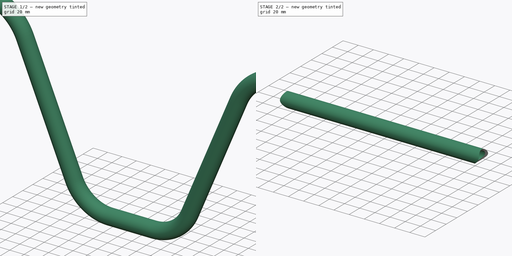
[diagram: build sequence overview — one tinted view per stage of 2, left to right]
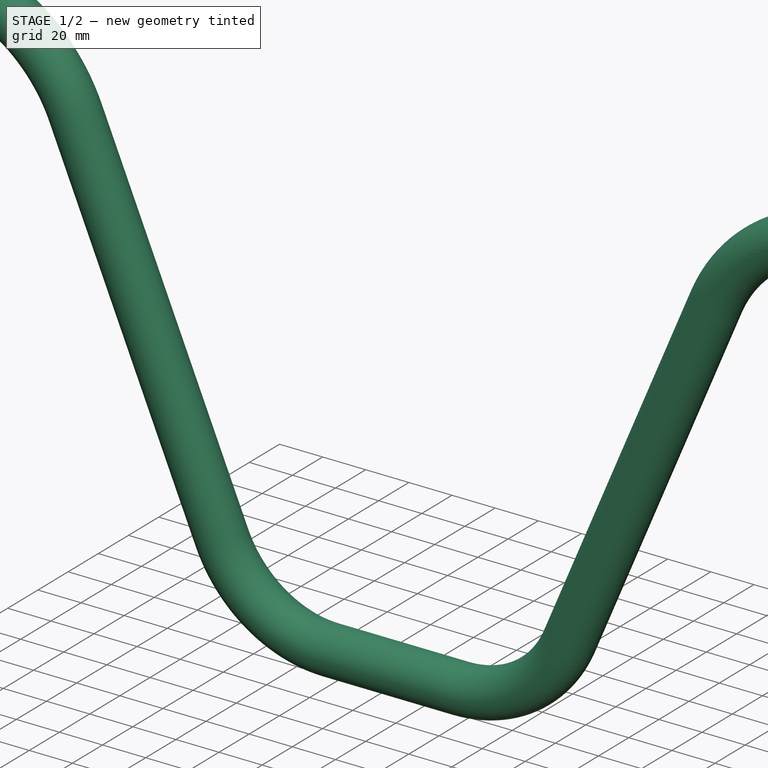
[diagram: stage 1 of 2 — iso view after this stage's code; geometry added in this stage tinted green]
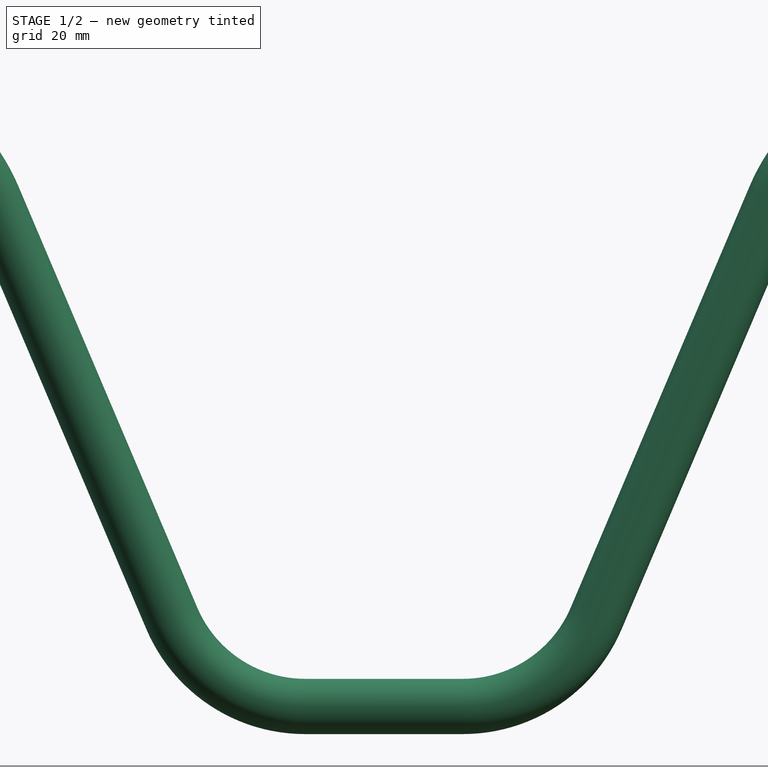
[diagram: stage 1 of 2 — front view after this stage's code; geometry added in this stage tinted green]
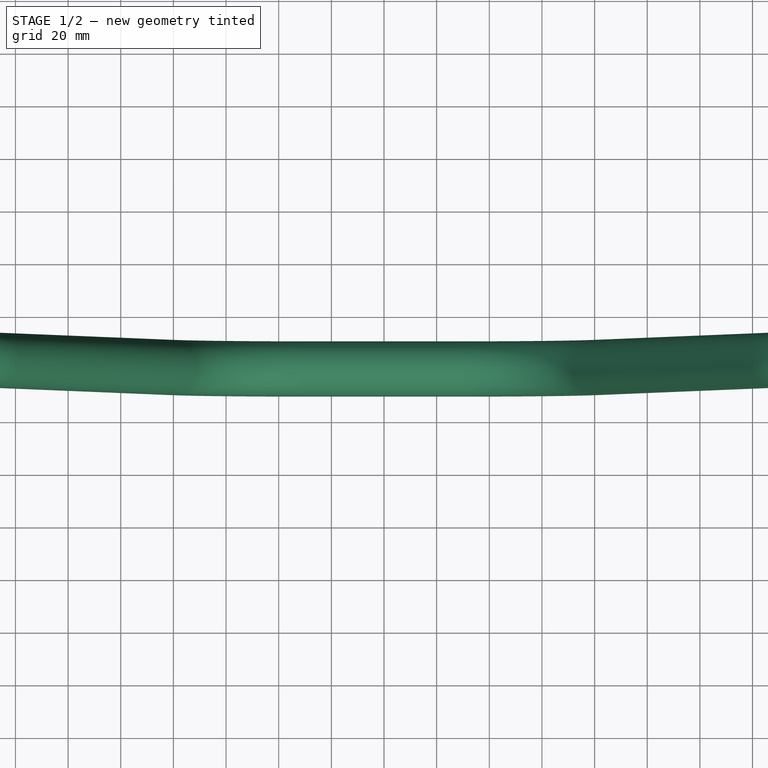
[diagram: stage 1 of 2 — top view after this stage's code; geometry added in this stage tinted green]
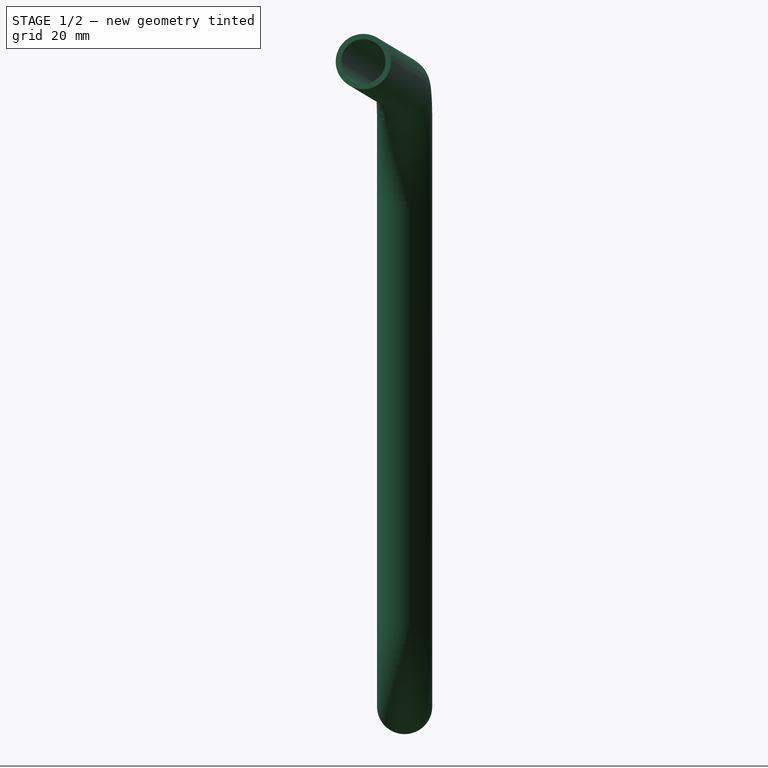
[diagram: stage 1 of 2 — right view after this stage's code; geometry added in this stage tinted green]
FCSTD DOCUMENT  (FreeCAD 1.0R39285 (Git))
Label: Bike_Handlebar
License: All rights reserved
LicenseURL: https://en.wikipedia.org/wiki/All_rights_reserved
objects: Sketcher::SketchObject×4, PartDesign::SubShapeBinder×3, PartDesign::Body×2, PartDesign::Pad×2, Part::FeaturePython×1, App::DocumentObjectGroup×1, PartDesign::AdditivePipe×1, PartDesign::Mirrored×1, App::Part×1
note: 25 computed .brp shape members not serialized (recipe doc carries the construction recipe); baked Part::Feature solids carry a one-line shape summary decoded from their .brp

FEATURE [Sketcher::SketchObject] Sketch  label="Front"
  ArcFitTolerance = 1e-06
  FullyConstrained = true
  MakeInternals = false
  Placement = pos=(0,0,0) rot=(1,0,0;1.5708rad)
  sketch-geometry (5):
    g0: LineSegment StartX=0 StartY=0 StartZ=0 EndX=30 EndY=6.7146e-12 EndZ=0
    g1: ArcOfCircle CenterX=30 CenterY=55 CenterZ=0 NormalX=0 NormalY=0 NormalZ=1 AngleXU=0 Radius=55 StartAngle=4.71239 EndAngle=5.88176
    g2: LineSegment StartX=80.6278 StartY=33.5098 StartZ=0 EndX=148.54 EndY=193.502 EndZ=0
    g3: ArcOfCircle CenterX=212.976 CenterY=166.151 CenterZ=0 NormalX=0 NormalY=0 NormalZ=1 AngleXU=0 Radius=70 StartAngle=1.62316 EndAngle=2.74017
    g4: LineSegment StartX=209.312 StartY=236.055 StartZ=0 EndX=380 EndY=245 EndZ=0
  constraints (13):
    c: Distance(g0) = 30
    c: Coincident(g0,g-1)
    c: PointOnObject(g0,g-1)
    c: Tangent(g0,g1) = -1.5708
    c: Tangent(g1,g2) = -1.5708
    c: Tangent(g2,g3) = 1.5708
    c: Tangent(g3,g4) = 1.5708
    c: DistanceX(g0,g4) = 380
    c: DistanceY(g0,g4) = 245
    c: Radius(g3) = 70
    c: Angle(g-1,g4) = 0.0523599
    c: Radius(g1) = 55
    c: Angle(g-1,g2) = 1.16937
FEATURE [Sketcher::SketchObject] Sketch001  label="Top"
  ArcFitTolerance = 1e-06
  ExternalGeometry = -> [Sketch]
  FullyConstrained = true
  MakeInternals = false
  sketch-geometry (3):
    g0: LineSegment StartX=0 StartY=0 StartZ=0 EndX=170 EndY=0 EndZ=0
    g1: ArcOfCircle CenterX=170 CenterY=-700 CenterZ=0 NormalX=0 NormalY=0 NormalZ=1 AngleXU=0 Radius=700 StartAngle=1.48353 EndAngle=1.5708
    g2: LineSegment StartX=231.009 StartY=-2.66371 StartZ=0 EndX=380 EndY=-15.6987 EndZ=0
  constraints (8):
    c: Coincident(g-1,g0)
    c: PointOnObject(g0,g-1)
    c: Tangent(g0,g1) = 1.5708
    c: Tangent(g1,g2) = 1.5708
    c: DistanceX(g0,g0) = 170
    c: Radius(g1) = 700
    c: Angle(g2,g-1) = 0.0872665
    c: Vertical(g2,g-3)
FEATURE [Part::FeaturePython] Mixed_curve  # WARN: FeaturePython — macro-defined, semantics opaque (R4)
  Active = false
  ApproxTolerance = 0.001
  Continuity = 5
  DegreeMax = 5
  DegreeMin = 3
  Direction1 = (0,0,0)
  Direction2 = (0,0,0)
  FillFace1 = false
  FillFace2 = false
  Parametrization = 0
  Samples = 100
  Shape1 = -> Sketch001
  Shape2 = -> Sketch
FEATURE [App::DocumentObjectGroup] Group  label="Sketches"
  Group = -> [Sketch,Sketch001,Mixed_curve]
FEATURE [Sketcher::SketchObject] Sketch002
  ArcFitTolerance = 1e-06
  AttachmentSupport = -> [YZ_Plane]
  FullyConstrained = true
  MakeInternals = false
  MapMode = 5
  Placement = pos=(0,0,0) rot=(0.57735,0.57735,0.57735;2.0944rad)
  sketch-geometry (2):
    g0: Circle CenterX=0 CenterY=0 CenterZ=0 NormalX=0 NormalY=0 NormalZ=1 AngleXU=0 Radius=10.5
    g1: Circle CenterX=0 CenterY=0 CenterZ=0 NormalX=0 NormalY=0 NormalZ=1 AngleXU=0 Radius=8.5
  constraints (4):
    c: Diameter(g0) = 21
    c: Coincident(g0,g-1)
    c: Diameter(g1) = 17
    c: Coincident(g1,g0)
FEATURE [PartDesign::SubShapeBinder] Binder
  BindCopyOnChange = 0
  BindMode = 0
  ClaimChildren = false
  Context = -> Part [Body.Binder.]
  Fuse = false
  MakeFace = true
  OffsetFill = false
  OffsetIntersection = false
  OffsetJoinType = 0
  OffsetOpenResult = false
  PartialLoad = false
  Refine = true
  Relative = true
  Support = -> [Mixed_curve]
  _Version = 2
FEATURE [PartDesign::AdditivePipe] AdditivePipe
  AuxilleryCurvelinear = true
  AuxillerySpineTangent = false
  Binormal = (0,0,0)
  Mode = 0
  Placement = pos=(0,0,0) rot=(1,1,1;2.0944rad)
  Profile = -> Sketch002
  Refine = true
  Spine = -> Binder
  SpineTangent = false
  Suppressed = false
  Transformation = 0
  Transition = 0
FEATURE [PartDesign::Mirrored] Mirrored
  BaseFeature = -> AdditivePipe
  MirrorPlane = -> YZ_Plane
  Placement = pos=(0,0,0) rot=(1,1,1;2.0944rad)
  Refine = true
  Suppressed = false
  TransformMode = 1
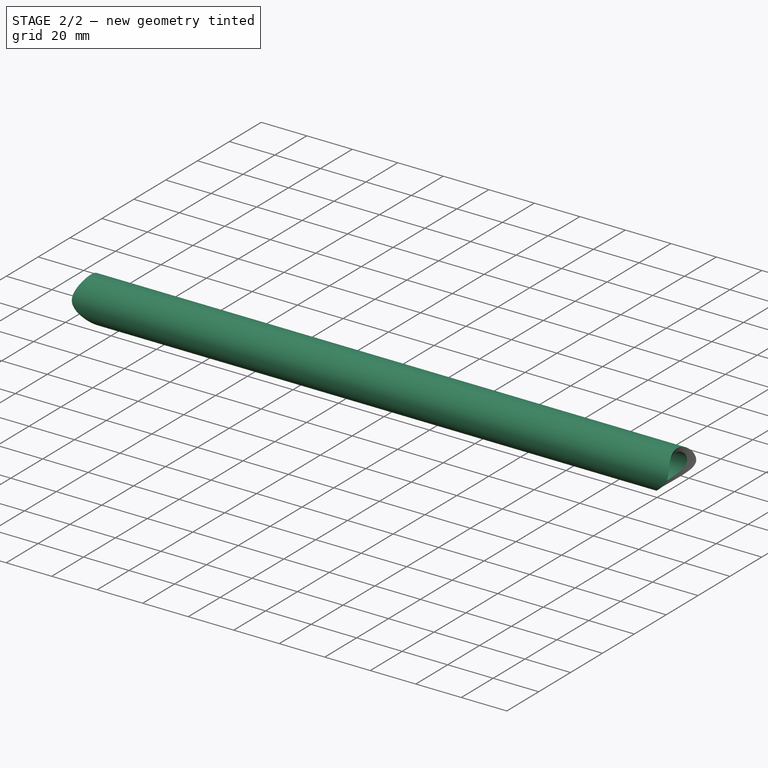
[diagram: stage 2 of 2 — iso view after this stage's code; geometry added in this stage tinted green]
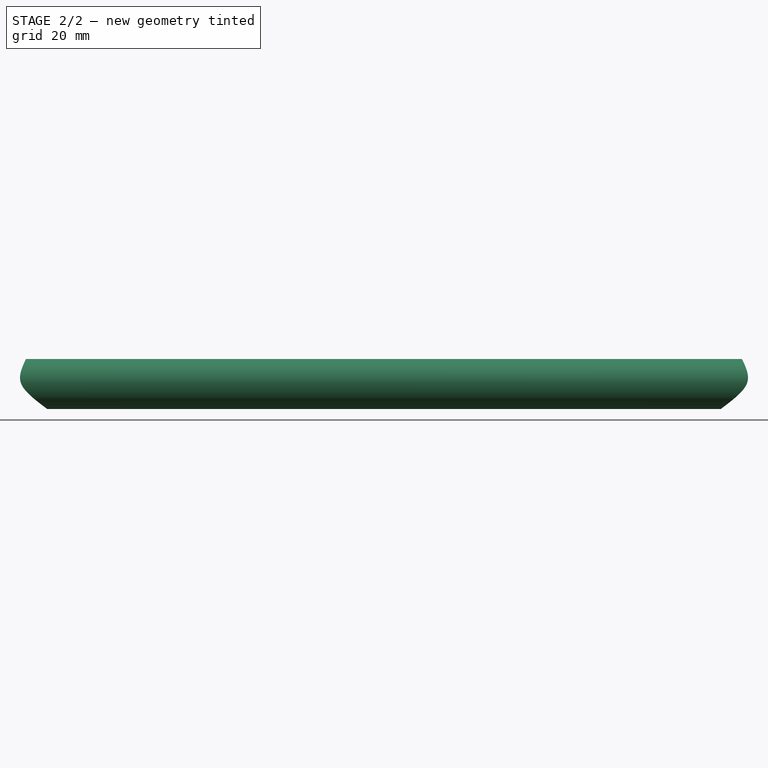
[diagram: stage 2 of 2 — front view after this stage's code; geometry added in this stage tinted green]
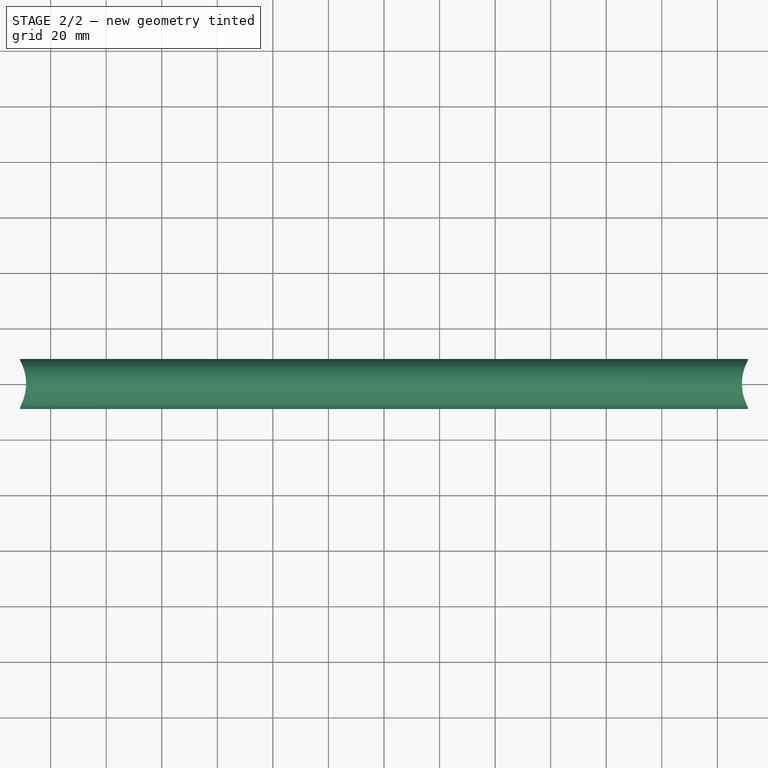
[diagram: stage 2 of 2 — top view after this stage's code; geometry added in this stage tinted green]
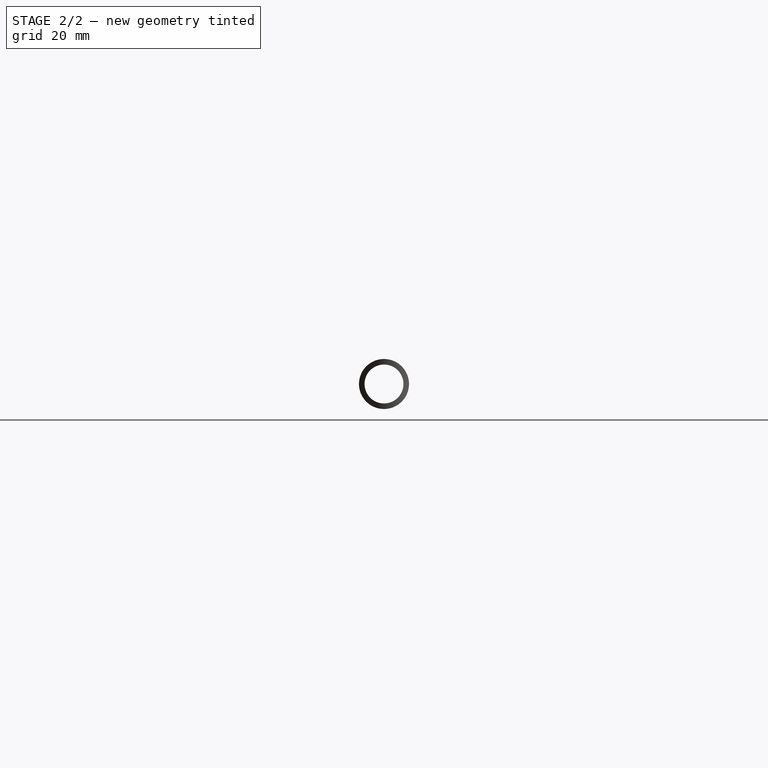
[diagram: stage 2 of 2 — right view after this stage's code; geometry added in this stage tinted green]
FEATURE [Sketcher::SketchObject] Sketch003
  ArcFitTolerance = 1e-06
  AttachmentSupport = -> [YZ_Plane001]
  FullyConstrained = true
  MakeInternals = false
  MapMode = 5
  Placement = pos=(0,0,0) rot=(0.57735,0.57735,0.57735;2.0944rad)
  sketch-geometry (2):
    g0: Circle CenterX=0 CenterY=165 CenterZ=0 NormalX=0 NormalY=0 NormalZ=1 AngleXU=0 Radius=9
    g1: Circle CenterX=0 CenterY=165 CenterZ=0 NormalX=0 NormalY=0 NormalZ=1 AngleXU=0 Radius=7
  constraints (5):
    c: Diameter(g0) = 18
    c: PointOnObject(g0,g-2)
    c: Diameter(g1) = 14
    c: Coincident(g1,g0)
    c: DistanceY(g-1,g0) = 165
FEATURE [PartDesign::SubShapeBinder] Binder001
  BindCopyOnChange = 0
  BindMode = 0
  ClaimChildren = false
  Context = -> Body [Binder001.]
  Fuse = false
  MakeFace = true
  OffsetFill = false
  OffsetIntersection = false
  OffsetJoinType = 0
  OffsetOpenResult = false
  PartialLoad = false
  Refine = true
  Relative = true
  _Version = 2
FEATURE [PartDesign::Body] Body  label="Long Tube"
  AllowCompound = false
  Group = -> [Sketch002,Binder,AdditivePipe,Mirrored,Binder001]
  Origin = -> Origin
  Tip = -> Mirrored
FEATURE [PartDesign::SubShapeBinder] Binder002
  BindCopyOnChange = 0
  BindMode = 0
  ClaimChildren = false
  Context = -> Part [Body001.Binder002.]
  Fuse = false
  MakeFace = true
  OffsetFill = false
  OffsetIntersection = false
  OffsetJoinType = 0
  OffsetOpenResult = false
  PartialLoad = false
  Refine = true
  Relative = true
  Support = -> [Body]
  _Version = 2
FEATURE [PartDesign::Pad] Pad
  Direction = (1,0,0)
  Length = 10
  Length2 = 10
  Placement = pos=(0,0,0) rot=(1,1,1;2.0944rad)
  Profile = -> Sketch003
  ReferenceAxis = -> Sketch003 [N_Axis]
  Refine = true
  Suppressed = false
  Type = 3
  UpToFace = -> Binder002 [Face10]
FEATURE [PartDesign::Pad] Pad001
  BaseFeature = -> Pad
  Direction = (1,0,0)
  Length = 10
  Length2 = 10
  Placement = pos=(0,0,0) rot=(1,1,1;2.0944rad)
  Profile = -> Sketch003
  ReferenceAxis = -> Sketch003 [N_Axis]
  Refine = true
  Suppressed = false
  Type = 3
  UpToFace = -> Binder002 [Face16]
FEATURE [PartDesign::Body] Body001  label="Small Tube"
  AllowCompound = false
  Group = -> [Sketch003,Binder002,Pad,Pad001]
  Origin = -> Origin001
  Tip = -> Pad001
FEATURE [App::Part] Part  label="HandleBar"
  Group = -> [Sketch001,Sketch,Mixed_curve,Group,Body,Body001]
  Origin = -> Origin002
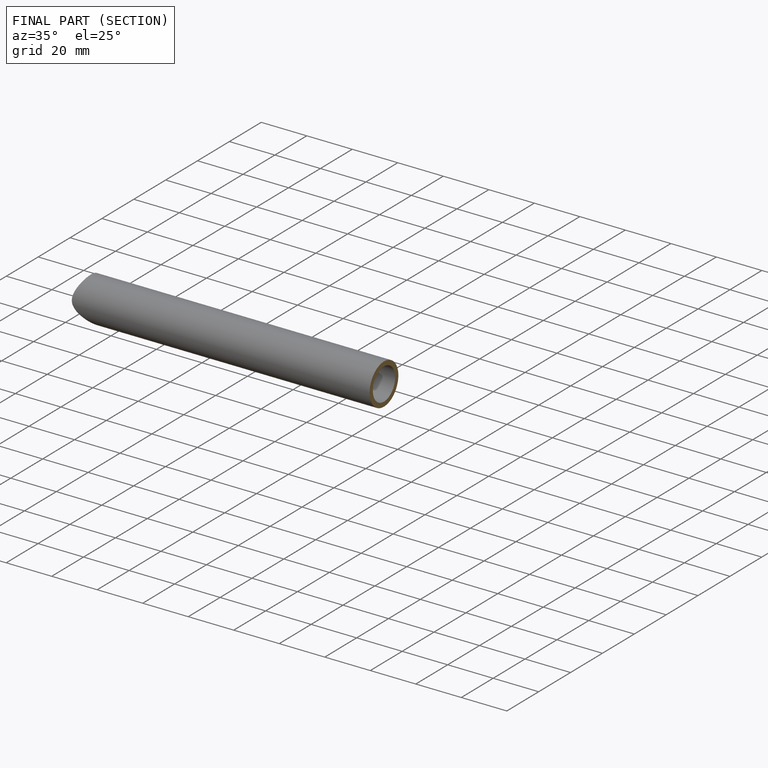
[diagram: finished part — half-section view (interior)]
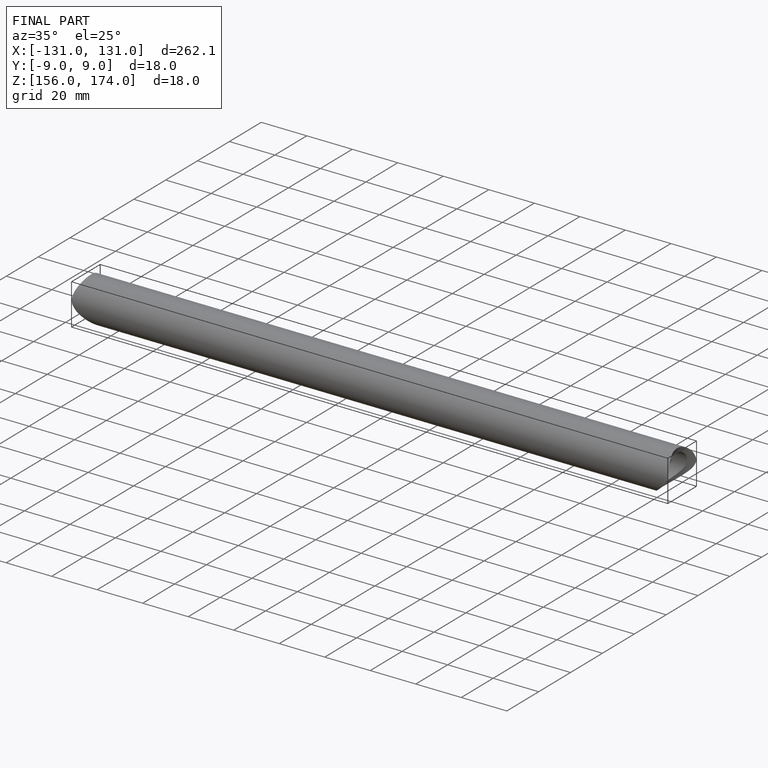
[diagram: finished part — iso view with bounding-box wireframe]
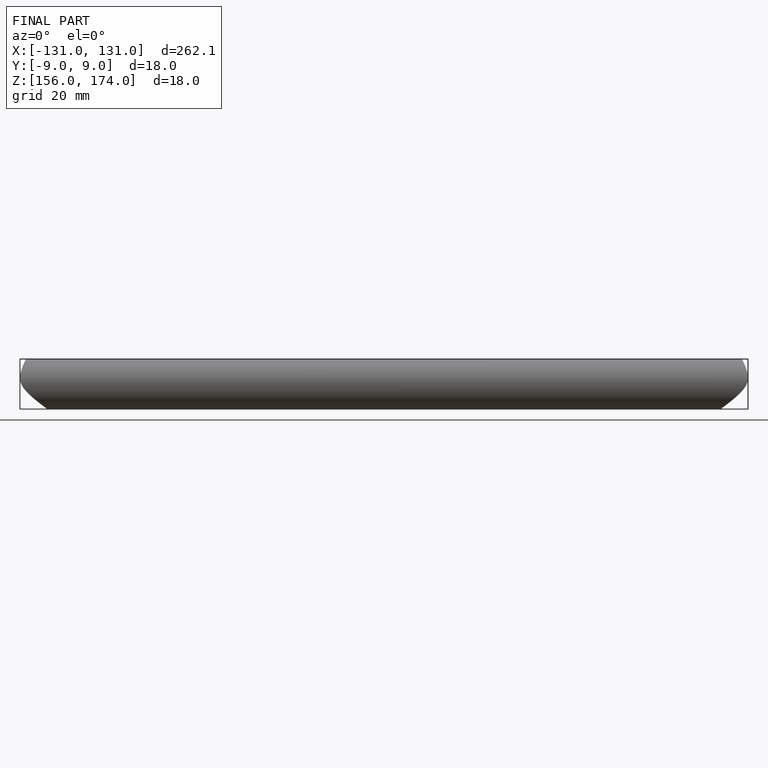
[diagram: finished part — front view with bounding-box wireframe]
